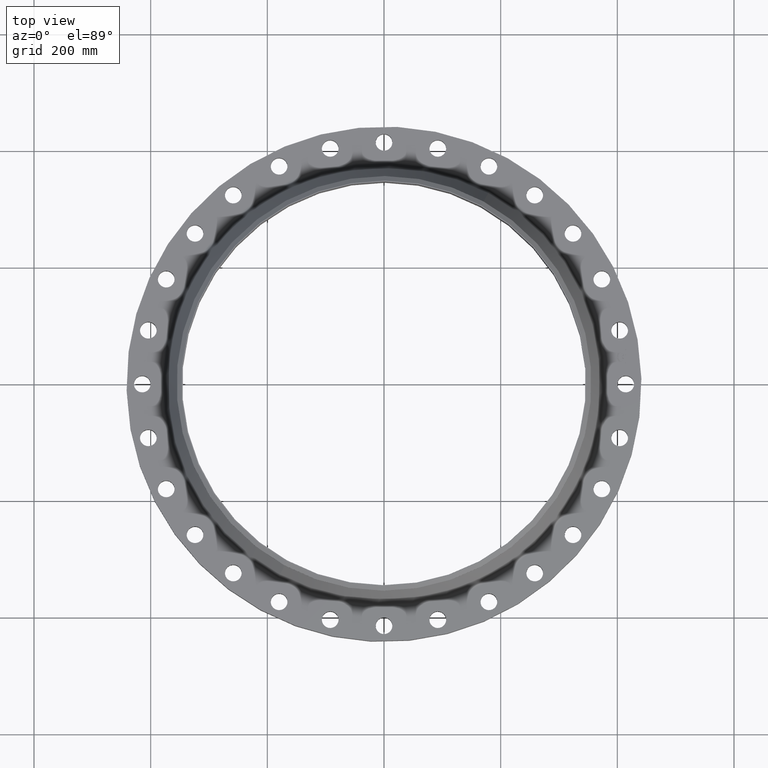
[diagram: clean part render]
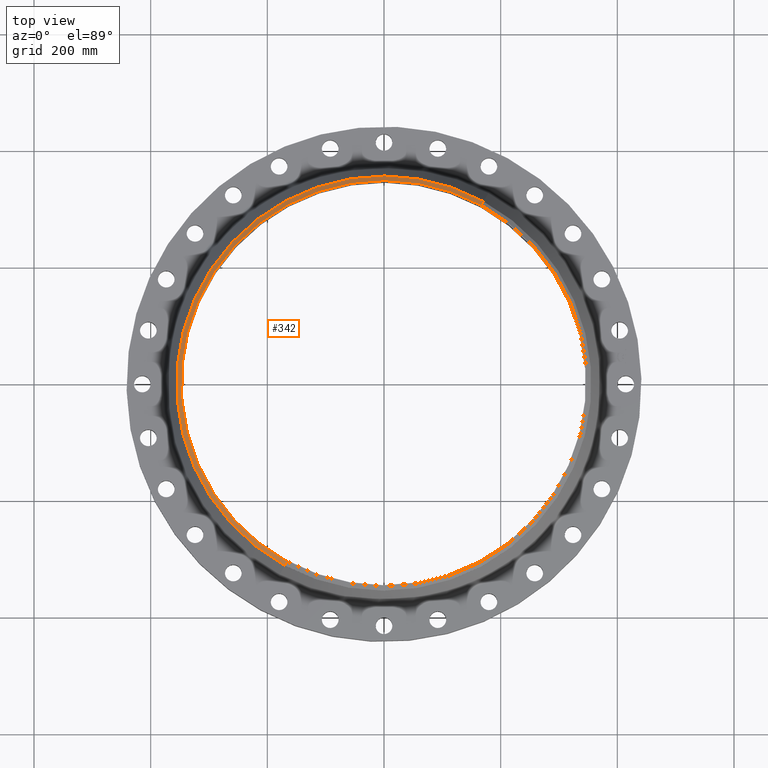
[diagram: same view with one face highlighted and labeled with its STEP entity id]
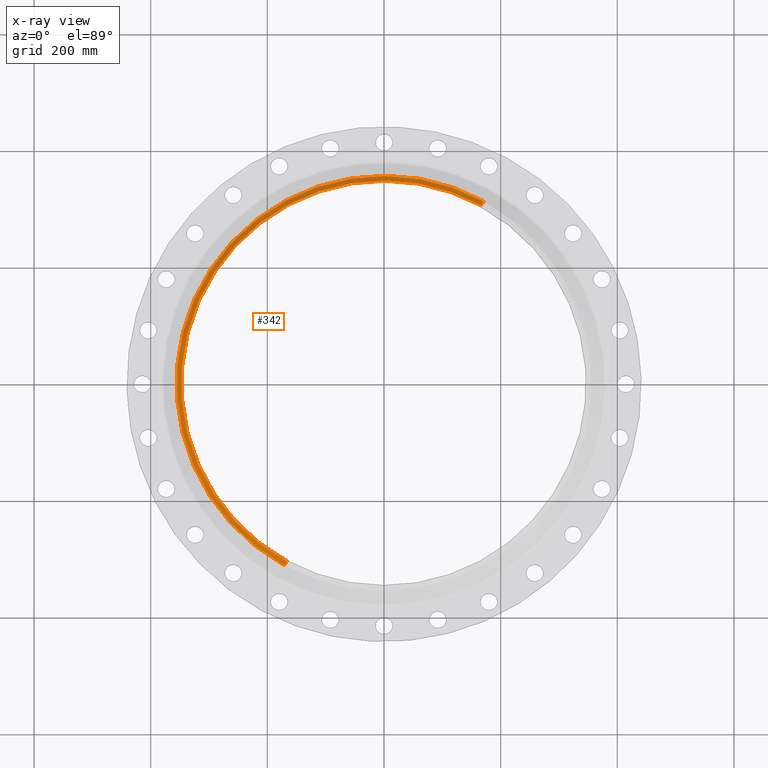
[diagram: x-ray of the same camera — body ghosted, the highlighted face saturated]
A machine part, top view. The second image highlights one B-rep face of the part: STEP entity #342.
The next image is the same camera in x-ray: the body ghosted, the highlighted face saturated — about 0% of this face is hidden behind the body in this view.
In plain terms, the highlighted conical surface has half-angle 52.5 deg.
Its self-contained STEP definition (entity closure, byte-faithful):
#290=AXIS2_PLACEMENT_3D('Circle Axis2P3D',#288,#289,$) ;
#303=AXIS2_PLACEMENT_3D('Cone Axis2P3D',#300,#301,#302) ;
#333=AXIS2_PLACEMENT_3D('Circle Axis2P3D',#331,#332,$) ;
#266=CARTESIAN_POINT('Vertex',(-6.71195754049,-12.2861558665,4.76021031628)) ;
#273=CARTESIAN_POINT('Vertex',(6.71195754049,12.2861558665,4.76021031628)) ;
#288=CARTESIAN_POINT('Axis2P3D Location',(0.,0.,4.76021031628)) ;
#300=CARTESIAN_POINT('Axis2P3D Location',(0.,0.,5.00000000002)) ;
#305=CARTESIAN_POINT('Line Origine',(6.63704730008,12.1490335912,4.88010515815)) ;
#309=CARTESIAN_POINT('Vertex',(6.56213705967,12.0119113159,5.00000000002)) ;
#316=CARTESIAN_POINT('Vertex',(-6.56213705967,-12.0119113159,5.00000000002)) ;
#319=CARTESIAN_POINT('Line Origine',(-6.63704730008,-12.1490335912,4.88010515815)) ;
#331=CARTESIAN_POINT('Axis2P3D Location',(0.,0.,5.00000000002)) ;
#289=DIRECTION('Axis2P3D Direction',(0.,0.,-0.0393700787402)) ;
#301=DIRECTION('Axis2P3D Direction',(-0.,-0.,-0.0393700787402)) ;
#302=DIRECTION('Axis2P3D XDirection',(-0.0188750212049,-0.0345504945626,0.)) ;
#306=DIRECTION('Vector Direction',(0.014974561121,0.02741075027,-0.023966985394)) ;
#320=DIRECTION('Vector Direction',(-0.014974561121,-0.02741075027,-0.023966985394)) ;
#332=DIRECTION('Axis2P3D Direction',(0.,-0.,-0.0393700787402)) ;
#307=VECTOR('Line Direction',#306,0.0393700787402) ;
#321=VECTOR('Line Direction',#320,0.0393700787402) ;
#337=ORIENTED_EDGE('',*,*,#323,.F.) ;
#338=ORIENTED_EDGE('',*,*,#335,.T.) ;
#339=ORIENTED_EDGE('',*,*,#311,.T.) ;
#340=ORIENTED_EDGE('',*,*,#292,.F.) ;
#342=ADVANCED_FACE('PartBody',(#341),#304,.T.) ;
#291=CIRCLE('generated circle',#290,14.0000000001) ;
#334=CIRCLE('generated circle',#333,13.6875000001) ;
#304=CONICAL_SURFACE('Cone',#303,13.6875000001,0.916297857297) ;
#292=EDGE_CURVE('',#267,#274,#291,.T.) ;
#311=EDGE_CURVE('',#310,#274,#308,.T.) ;
#323=EDGE_CURVE('',#317,#267,#322,.T.) ;
#335=EDGE_CURVE('',#317,#310,#334,.T.) ;
#336=EDGE_LOOP('',(#337,#338,#339,#340)) ;
#341=FACE_OUTER_BOUND('',#336,.T.) ;
#308=LINE('Line',#305,#307) ;
#322=LINE('Line',#319,#321) ;
#267=VERTEX_POINT('',#266) ;
#274=VERTEX_POINT('',#273) ;
#310=VERTEX_POINT('',#309) ;
#317=VERTEX_POINT('',#316) ;